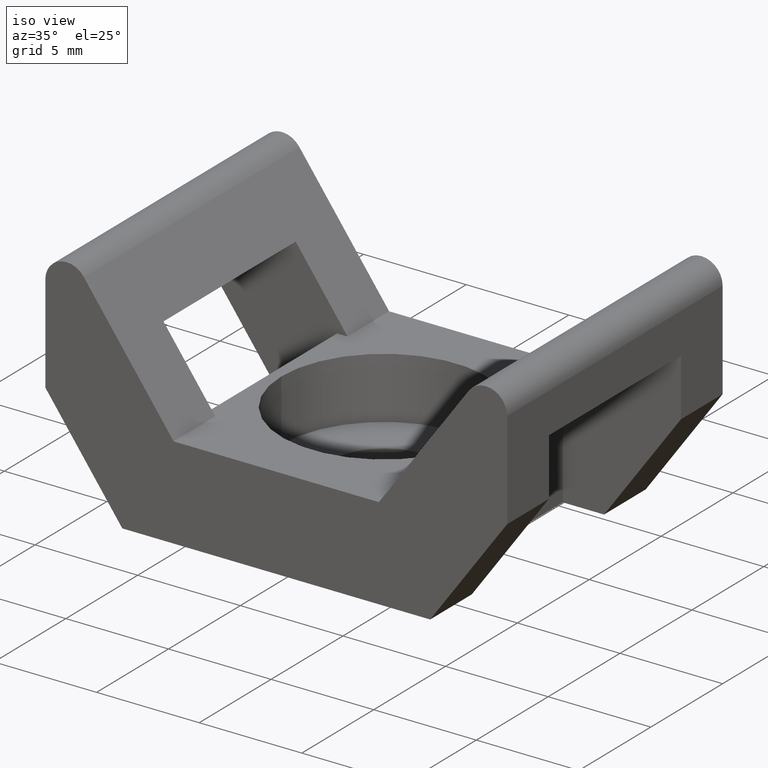
[diagram: clean part render]
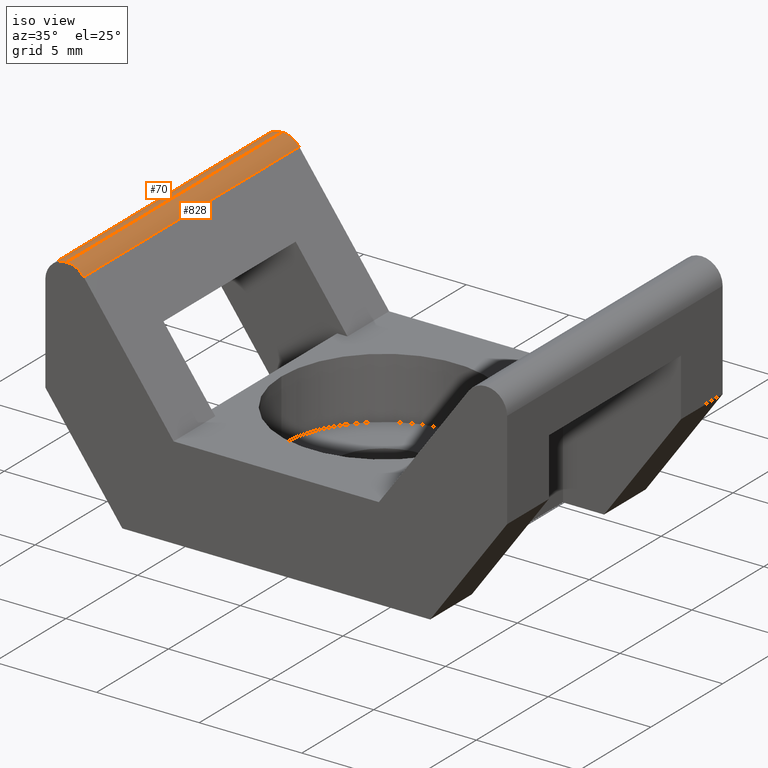
[diagram: same view with one multi-face feature highlighted, each face labeled with its STEP entity id]
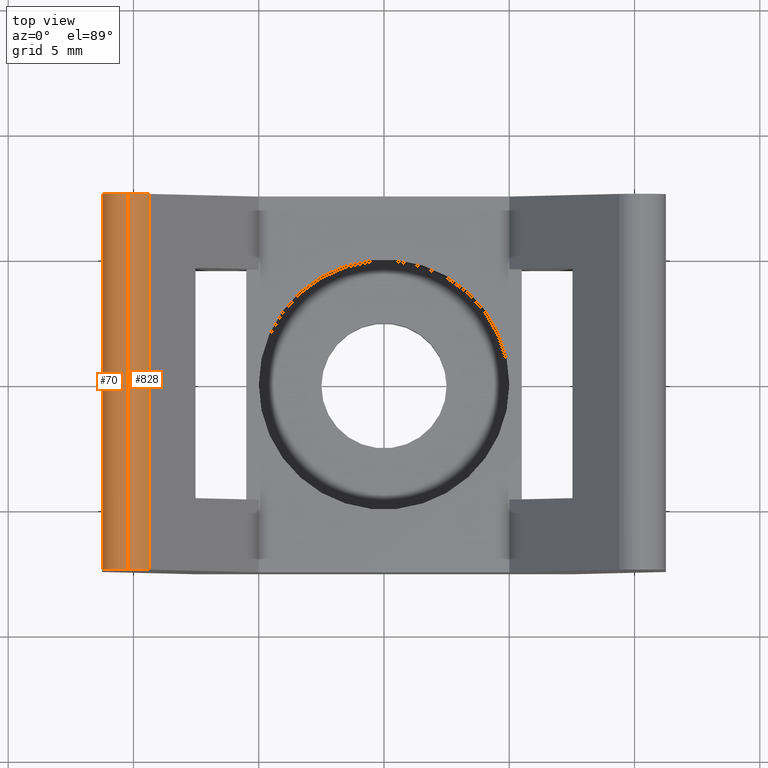
[diagram: same view with one multi-face feature highlighted, each face labeled with its STEP entity id]
A machine part, iso view. The highlighted faces form ONE feature: a constant-radius fillet chain: 2 tangent blend faces with common blend radius 1.0336 mm. The faces share edges in the B-rep.
A second angle (top view) of the same feature is appended — it is thin or edge-on in the first view.
Their STEP definitions:
[1] entity #70 (Cylinder):
#17 = AXIS2_PLACEMENT_3D ( 'NONE', #757, #835, #1082 ) ;
#22 = AXIS2_PLACEMENT_3D ( 'NONE', #270, #265, #965 ) ;
#28 = EDGE_CURVE ( 'NONE', #244, #983, #633, .T. ) ;
#70 = ADVANCED_FACE ( 'NONE', ( #126 ), #303, .T. ) ;
#72 = AXIS2_PLACEMENT_3D ( 'NONE', #820, #981, #565 ) ;
#86 = ORIENTED_EDGE ( 'NONE', *, *, #231, .T. ) ;
#126 = FACE_OUTER_BOUND ( 'NONE', #217, .T. ) ;
#133 = DIRECTION ( 'NONE',  ( 0.0000000000000000000, 1.000000000000000000, -0.0000000000000000000 ) ) ;
#217 = EDGE_LOOP ( 'NONE', ( #585, #86, #386, #226 ) ) ;
#226 = ORIENTED_EDGE ( 'NONE', *, *, #28, .F. ) ;
#231 = EDGE_CURVE ( 'NONE', #623, #922, #494, .T. ) ;
#244 = VERTEX_POINT ( 'NONE', #653 ) ;
#260 = CARTESIAN_POINT ( 'NONE',  ( -10.21643267780580000, 7.500000000000000000, 11.00000000000001100 ) ) ;
#265 = DIRECTION ( 'NONE',  ( -0.0000000000000000000, -1.000000000000000000, -0.0000000000000000000 ) ) ;
#270 = CARTESIAN_POINT ( 'NONE',  ( -10.21643267780580000, 7.500000000000000000, 9.966432677805819700 ) ) ;
#303 = CYLINDRICAL_SURFACE ( 'NONE', #17, 1.033567322194190600 ) ;
#386 = ORIENTED_EDGE ( 'NONE', *, *, #420, .T. ) ;
#420 = EDGE_CURVE ( 'NONE', #922, #983, #465, .T. ) ;
#437 = CARTESIAN_POINT ( 'NONE',  ( -11.25000000000000000, 7.500000000000000000, 9.966432677805819700 ) ) ;
#463 = VECTOR ( 'NONE', #663, 1000.000000000000000 ) ;
#465 = CIRCLE ( 'NONE', #22, 1.033567322194190600 ) ;
#482 = CARTESIAN_POINT ( 'NONE',  ( -10.21643267780580000, 0.0000000000000000000, 11.00000000000001100 ) ) ;
#494 = LINE ( 'NONE', #482, #463 ) ;
#541 = EDGE_CURVE ( 'NONE', #623, #244, #797, .T. ) ;
#565 = DIRECTION ( 'NONE',  ( 0.0000000000000000000, 0.0000000000000000000, 1.000000000000000000 ) ) ;
#585 = ORIENTED_EDGE ( 'NONE', *, *, #541, .F. ) ;
#623 = VERTEX_POINT ( 'NONE', #730 ) ;
#633 = LINE ( 'NONE', #915, #676 ) ;
#653 = CARTESIAN_POINT ( 'NONE',  ( -11.25000000000000000, -7.500000000000000000, 9.966432677805819700 ) ) ;
#663 = DIRECTION ( 'NONE',  ( 0.0000000000000000000, 1.000000000000000000, 0.0000000000000000000 ) ) ;
#676 = VECTOR ( 'NONE', #133, 1000.000000000000000 ) ;
#730 = CARTESIAN_POINT ( 'NONE',  ( -10.21643267780580000, -7.500000000000000000, 11.00000000000001100 ) ) ;
#757 = CARTESIAN_POINT ( 'NONE',  ( -10.21643267780580000, 0.0000000000000000000, 9.966432677805819700 ) ) ;
#797 = CIRCLE ( 'NONE', #72, 1.033567322194190600 ) ;
#820 = CARTESIAN_POINT ( 'NONE',  ( -10.21643267780580000, -7.500000000000000000, 9.966432677805819700 ) ) ;
#835 = DIRECTION ( 'NONE',  ( 0.0000000000000000000, 1.000000000000000000, 0.0000000000000000000 ) ) ;
#915 = CARTESIAN_POINT ( 'NONE',  ( -11.24999999999999800, 0.0000000000000000000, 9.966432677805819700 ) ) ;
#922 = VERTEX_POINT ( 'NONE', #260 ) ;
#965 = DIRECTION ( 'NONE',  ( 0.0000000000000000000, 0.0000000000000000000, 1.000000000000000000 ) ) ;
#981 = DIRECTION ( 'NONE',  ( -0.0000000000000000000, -1.000000000000000000, -0.0000000000000000000 ) ) ;
#983 = VERTEX_POINT ( 'NONE', #437 ) ;
#1082 = DIRECTION ( 'NONE',  ( 0.0000000000000000000, 0.0000000000000000000, 1.000000000000000000 ) ) ;
[2] entity #828 (Cylinder):
#15 = DIRECTION ( 'NONE',  ( -0.0000000000000000000, -1.000000000000000000, -0.0000000000000000000 ) ) ;
#77 = DIRECTION ( 'NONE',  ( 0.0000000000000000000, 1.000000000000000000, 0.0000000000000000000 ) ) ;
#150 = CARTESIAN_POINT ( 'NONE',  ( -10.21643267780580000, -7.500000000000000000, 9.966432677805819700 ) ) ;
#166 = CARTESIAN_POINT ( 'NONE',  ( -10.21643267780580000, 7.500000000000000000, 9.966432677805819700 ) ) ;
#225 = EDGE_CURVE ( 'NONE', #415, #623, #889, .T. ) ;
#231 = EDGE_CURVE ( 'NONE', #623, #922, #494, .T. ) ;
#260 = CARTESIAN_POINT ( 'NONE',  ( -10.21643267780580000, 7.500000000000000000, 11.00000000000001100 ) ) ;
#261 = CARTESIAN_POINT ( 'NONE',  ( -9.378116215530869900, 0.0000000000000000000, 10.57098781886950100 ) ) ;
#292 = EDGE_CURVE ( 'NONE', #798, #922, #496, .T. ) ;
#336 = VECTOR ( 'NONE', #941, 1000.000000000000000 ) ;
#353 = EDGE_CURVE ( 'NONE', #798, #415, #954, .T. ) ;
#415 = VERTEX_POINT ( 'NONE', #435 ) ;
#417 = DIRECTION ( 'NONE',  ( -1.678384599364182100E-015, 0.0000000000000000000, 1.000000000000000000 ) ) ;
#435 = CARTESIAN_POINT ( 'NONE',  ( -9.378116215530862800, -7.500000000000000000, 10.57098781886949000 ) ) ;
#463 = VECTOR ( 'NONE', #663, 1000.000000000000000 ) ;
#467 = ORIENTED_EDGE ( 'NONE', *, *, #225, .F. ) ;
#482 = CARTESIAN_POINT ( 'NONE',  ( -10.21643267780580000, 0.0000000000000000000, 11.00000000000001100 ) ) ;
#487 = DIRECTION ( 'NONE',  ( -0.0000000000000000000, -1.000000000000000000, -0.0000000000000000000 ) ) ;
#491 = CARTESIAN_POINT ( 'NONE',  ( -9.378116215530862800, 7.500000000000000000, 10.57098781886949000 ) ) ;
#494 = LINE ( 'NONE', #482, #463 ) ;
#496 = CIRCLE ( 'NONE', #671, 1.033567322194190600 ) ;
#503 = DIRECTION ( 'NONE',  ( -1.678384599364182100E-015, 0.0000000000000000000, 1.000000000000000000 ) ) ;
#516 = CYLINDRICAL_SURFACE ( 'NONE', #1013, 1.033567322194190600 ) ;
#623 = VERTEX_POINT ( 'NONE', #730 ) ;
#663 = DIRECTION ( 'NONE',  ( 0.0000000000000000000, 1.000000000000000000, 0.0000000000000000000 ) ) ;
#671 = AXIS2_PLACEMENT_3D ( 'NONE', #166, #15, #417 ) ;
#684 = ORIENTED_EDGE ( 'NONE', *, *, #292, .T. ) ;
#730 = CARTESIAN_POINT ( 'NONE',  ( -10.21643267780580000, -7.500000000000000000, 11.00000000000001100 ) ) ;
#775 = CARTESIAN_POINT ( 'NONE',  ( -10.21643267780580000, 0.0000000000000000000, 9.966432677805819700 ) ) ;
#778 = ORIENTED_EDGE ( 'NONE', *, *, #353, .F. ) ;
#779 = AXIS2_PLACEMENT_3D ( 'NONE', #150, #487, #503 ) ;
#798 = VERTEX_POINT ( 'NONE', #491 ) ;
#828 = ADVANCED_FACE ( 'NONE', ( #1010 ), #516, .T. ) ;
#848 = DIRECTION ( 'NONE',  ( 0.0000000000000000000, 0.0000000000000000000, 1.000000000000000000 ) ) ;
#877 = EDGE_LOOP ( 'NONE', ( #1008, #467, #778, #684 ) ) ;
#889 = CIRCLE ( 'NONE', #779, 1.033567322194190600 ) ;
#922 = VERTEX_POINT ( 'NONE', #260 ) ;
#941 = DIRECTION ( 'NONE',  ( -0.0000000000000000000, -1.000000000000000000, -0.0000000000000000000 ) ) ;
#954 = LINE ( 'NONE', #261, #336 ) ;
#1008 = ORIENTED_EDGE ( 'NONE', *, *, #231, .F. ) ;
#1010 = FACE_OUTER_BOUND ( 'NONE', #877, .T. ) ;
#1013 = AXIS2_PLACEMENT_3D ( 'NONE', #775, #77, #848 ) ;